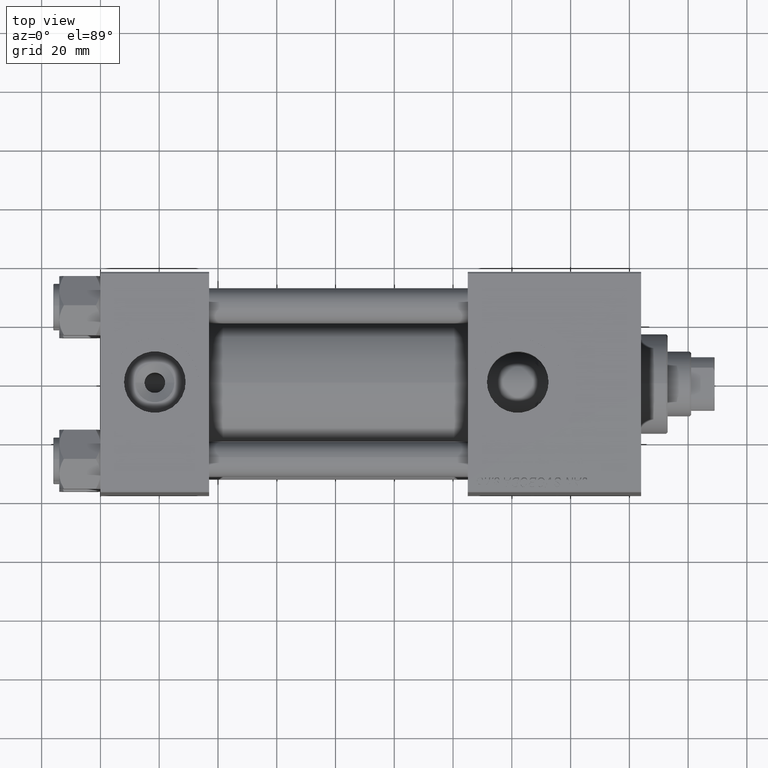
[diagram: clean part render]
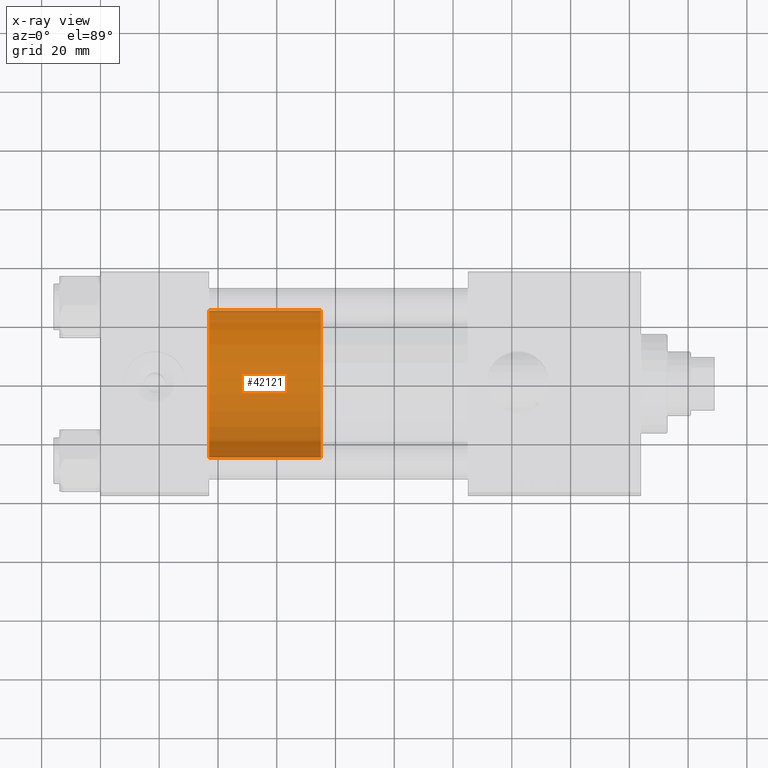
[diagram: x-ray — body ghosted, one internal face saturated and labeled with its STEP entity id]
A machine part, top view, then the same camera in x-ray: the body is ghosted and one INTERNAL B-rep face — a face not visible from any outside direction — is saturated and labeled: STEP entity #42121.
In plain terms, the highlighted cylindrical surface (partial cylindrical patch) has radius 25 mm, axis along (-1, 0, 0).
Its self-contained STEP definition (entity closure, byte-faithful):
#1033 = DIRECTION ( 'NONE',  ( 1.000000000000000000, 0.000000000000000000, 0.000000000000000000 ) ) ;
#2055 = CIRCLE ( 'NONE', #12834, 25.00000000000000000 ) ;
#3818 = VERTEX_POINT ( 'NONE', #10983 ) ;
#4947 = AXIS2_PLACEMENT_3D ( 'NONE', #22677, #46068, #38514 ) ;
#6625 = VERTEX_POINT ( 'NONE', #13124 ) ;
#9094 = CARTESIAN_POINT ( 'NONE',  ( 0.000000000000000000, 0.000000000000000000, 38.00000000000000000 ) ) ;
#10983 = CARTESIAN_POINT ( 'NONE',  ( -25.00000000000000000, 0.000000000000000000, 38.00000000000000000 ) ) ;
#11971 = DIRECTION ( 'NONE',  ( -0.000000000000000000, -0.000000000000000000, -1.000000000000000000 ) ) ;
#12834 = AXIS2_PLACEMENT_3D ( 'NONE', #44151, #28820, #1033 ) ;
#13124 = CARTESIAN_POINT ( 'NONE',  ( -25.00000000000000000, 0.000000000000000000, 0.000000000000000000 ) ) ;
#14122 = CARTESIAN_POINT ( 'NONE',  ( 25.00000000000000000, 3.061616997868383043E-15, 0.000000000000000000 ) ) ;
#16653 = CARTESIAN_POINT ( 'NONE',  ( -25.00000000000000000, 0.000000000000000000, 38.00000000000000000 ) ) ;
#22632 = VECTOR ( 'NONE', #27057, 1000.000000000000000 ) ;
#22677 = CARTESIAN_POINT ( 'NONE',  ( 0.000000000000000000, 0.000000000000000000, 38.00000000000000000 ) ) ;
#23712 = EDGE_CURVE ( 'NONE', #24493, #40687, #43685, .T. ) ;
#24098 = AXIS2_PLACEMENT_3D ( 'NONE', #9094, #49085, #24942 ) ;
#24493 = VERTEX_POINT ( 'NONE', #49425 ) ;
#24688 = FACE_OUTER_BOUND ( 'NONE', #37494, .T. ) ;
#24942 = DIRECTION ( 'NONE',  ( -1.000000000000000000, 0.000000000000000000, 0.000000000000000000 ) ) ;
#26067 = ORIENTED_EDGE ( 'NONE', *, *, #33862, .F. ) ;
#27057 = DIRECTION ( 'NONE',  ( -0.000000000000000000, -0.000000000000000000, -1.000000000000000000 ) ) ;
#28395 = EDGE_CURVE ( 'NONE', #40687, #6625, #2055, .T. ) ;
#28820 = DIRECTION ( 'NONE',  ( 0.000000000000000000, 0.000000000000000000, 1.000000000000000000 ) ) ;
#31017 = ORIENTED_EDGE ( 'NONE', *, *, #50829, .F. ) ;
#31716 = LINE ( 'NONE', #16653, #35300 ) ;
#32256 = ORIENTED_EDGE ( 'NONE', *, *, #28395, .T. ) ;
#33059 = ORIENTED_EDGE ( 'NONE', *, *, #23712, .T. ) ;
#33862 = EDGE_CURVE ( 'NONE', #3818, #6625, #31716, .T. ) ;
#35300 = VECTOR ( 'NONE', #11971, 1000.000000000000000 ) ;
#37494 = EDGE_LOOP ( 'NONE', ( #31017, #33059, #32256, #26067 ) ) ;
#38514 = DIRECTION ( 'NONE',  ( 1.000000000000000000, 0.000000000000000000, 0.000000000000000000 ) ) ;
#40687 = VERTEX_POINT ( 'NONE', #14122 ) ;
#40790 = CYLINDRICAL_SURFACE ( 'NONE', #24098, 25.00000000000000000 ) ;
#42121 = ADVANCED_FACE ( 'NONE', ( #24688 ), #40790, .T. ) ;
#42907 = CARTESIAN_POINT ( 'NONE',  ( 25.00000000000000000, 3.061616997868383043E-15, 38.00000000000000000 ) ) ;
#43685 = LINE ( 'NONE', #42907, #22632 ) ;
#44151 = CARTESIAN_POINT ( 'NONE',  ( 0.000000000000000000, 0.000000000000000000, 0.000000000000000000 ) ) ;
#46068 = DIRECTION ( 'NONE',  ( 0.000000000000000000, 0.000000000000000000, 1.000000000000000000 ) ) ;
#48110 = CIRCLE ( 'NONE', #4947, 25.00000000000000000 ) ;
#49085 = DIRECTION ( 'NONE',  ( -0.000000000000000000, -0.000000000000000000, -1.000000000000000000 ) ) ;
#49425 = CARTESIAN_POINT ( 'NONE',  ( 25.00000000000000000, 3.061616997868383043E-15, 38.00000000000000000 ) ) ;
#50829 = EDGE_CURVE ( 'NONE', #24493, #3818, #48110, .T. ) ;